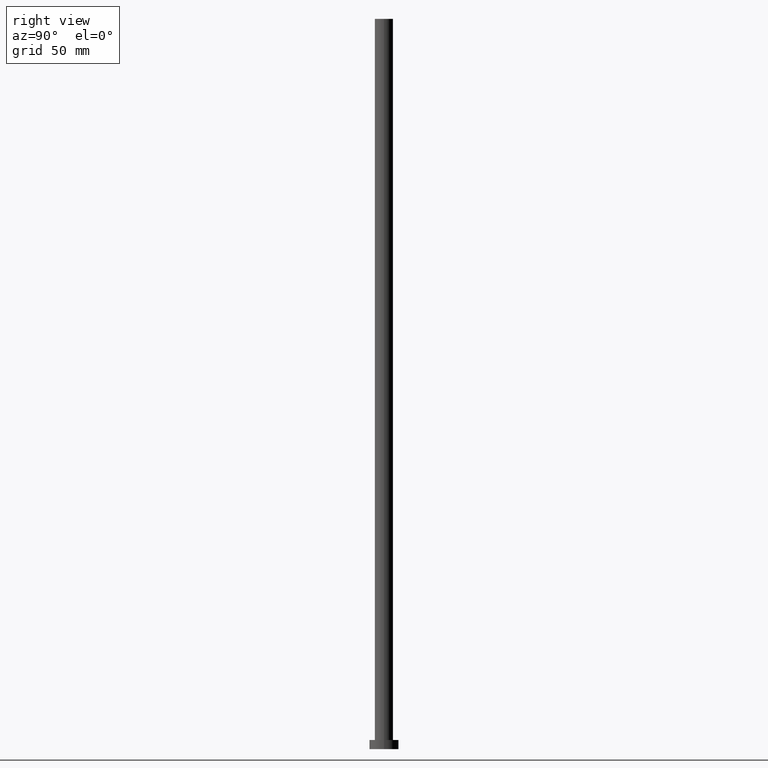
[diagram: clean part render]
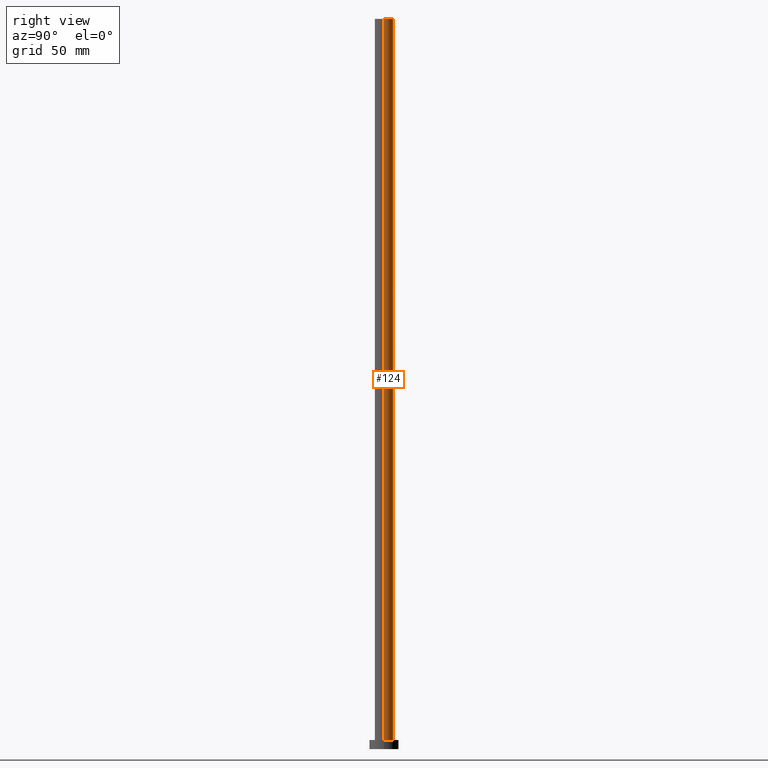
[diagram: same view with one face highlighted and labeled with its STEP entity id]
A machine part, right view. The second image highlights one B-rep face of the part: STEP entity #124.
In plain terms, the highlighted cylindrical surface (edge-blend (fillet) strip) has radius 5 mm, axis along (-0, -0, -1).
Its self-contained STEP definition (entity closure, byte-faithful):
#3 = DIRECTION ( 'NONE',  ( 1.000000000000000000, 0.000000000000000000, 0.000000000000000000 ) ) ;
#9 = ORIENTED_EDGE ( 'NONE', *, *, #133, .T. ) ;
#20 = EDGE_CURVE ( 'NONE', #81, #158, #184, .T. ) ;
#22 = ORIENTED_EDGE ( 'NONE', *, *, #233, .F. ) ;
#26 = FACE_OUTER_BOUND ( 'NONE', #84, .T. ) ;
#30 = AXIS2_PLACEMENT_3D ( 'NONE', #102, #44, #62 ) ;
#43 = CIRCLE ( 'NONE', #30, 5.000000000000000888 ) ;
#44 = DIRECTION ( 'NONE',  ( 0.000000000000000000, 0.000000000000000000, 1.000000000000000000 ) ) ;
#47 = DIRECTION ( 'NONE',  ( -0.000000000000000000, -0.000000000000000000, -1.000000000000000000 ) ) ;
#48 = CARTESIAN_POINT ( 'NONE',  ( 0.000000000000000000, 0.000000000000000000, 400.0000000000000000 ) ) ;
#55 = ORIENTED_EDGE ( 'NONE', *, *, #87, .T. ) ;
#62 = DIRECTION ( 'NONE',  ( 1.000000000000000000, 0.000000000000000000, 0.000000000000000000 ) ) ;
#64 = DIRECTION ( 'NONE',  ( -0.000000000000000000, -0.000000000000000000, -1.000000000000000000 ) ) ;
#81 = VERTEX_POINT ( 'NONE', #243 ) ;
#84 = EDGE_LOOP ( 'NONE', ( #214, #9, #55, #22 ) ) ;
#87 = EDGE_CURVE ( 'NONE', #121, #137, #43, .T. ) ;
#89 = CARTESIAN_POINT ( 'NONE',  ( 5.000000000000000888, 6.123233995736766282E-16, 5.000000000000000000 ) ) ;
#91 = AXIS2_PLACEMENT_3D ( 'NONE', #105, #178, #3 ) ;
#102 = CARTESIAN_POINT ( 'NONE',  ( 0.000000000000000000, 0.000000000000000000, 5.000000000000000000 ) ) ;
#105 = CARTESIAN_POINT ( 'NONE',  ( 0.000000000000000000, 0.000000000000000000, 400.0000000000000000 ) ) ;
#121 = VERTEX_POINT ( 'NONE', #89 ) ;
#124 = ADVANCED_FACE ( 'NONE', ( #26 ), #246, .T. ) ;
#125 = CARTESIAN_POINT ( 'NONE',  ( -5.000000000000000888, 0.000000000000000000, 5.000000000000000000 ) ) ;
#128 = DIRECTION ( 'NONE',  ( -1.000000000000000000, 0.000000000000000000, 0.000000000000000000 ) ) ;
#133 = EDGE_CURVE ( 'NONE', #81, #121, #208, .T. ) ;
#137 = VERTEX_POINT ( 'NONE', #125 ) ;
#158 = VERTEX_POINT ( 'NONE', #252 ) ;
#167 = LINE ( 'NONE', #193, #222 ) ;
#168 = AXIS2_PLACEMENT_3D ( 'NONE', #48, #47, #128 ) ;
#170 = DIRECTION ( 'NONE',  ( -0.000000000000000000, -0.000000000000000000, -1.000000000000000000 ) ) ;
#178 = DIRECTION ( 'NONE',  ( 0.000000000000000000, 0.000000000000000000, 1.000000000000000000 ) ) ;
#184 = CIRCLE ( 'NONE', #91, 5.000000000000000888 ) ;
#193 = CARTESIAN_POINT ( 'NONE',  ( -5.000000000000000888, 0.000000000000000000, 400.0000000000000000 ) ) ;
#208 = LINE ( 'NONE', #231, #250 ) ;
#214 = ORIENTED_EDGE ( 'NONE', *, *, #20, .F. ) ;
#222 = VECTOR ( 'NONE', #170, 1000.000000000000000 ) ;
#231 = CARTESIAN_POINT ( 'NONE',  ( 5.000000000000000888, 6.123233995736766282E-16, 400.0000000000000000 ) ) ;
#233 = EDGE_CURVE ( 'NONE', #158, #137, #167, .T. ) ;
#243 = CARTESIAN_POINT ( 'NONE',  ( 5.000000000000000888, 6.123233995736766282E-16, 400.0000000000000000 ) ) ;
#246 = CYLINDRICAL_SURFACE ( 'NONE', #168, 5.000000000000000888 ) ;
#250 = VECTOR ( 'NONE', #64, 1000.000000000000000 ) ;
#252 = CARTESIAN_POINT ( 'NONE',  ( -5.000000000000000888, 0.000000000000000000, 400.0000000000000000 ) ) ;